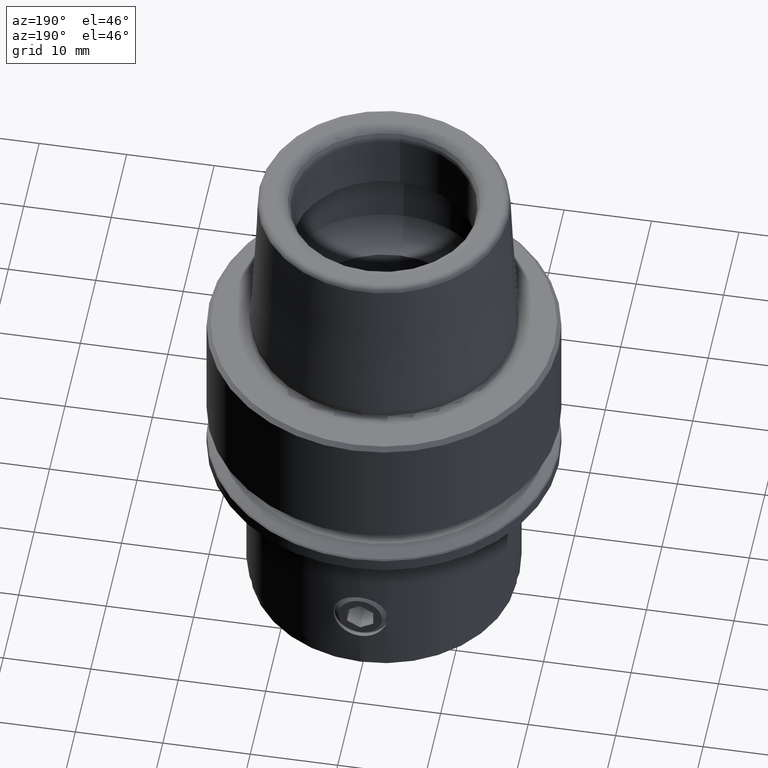
[diagram: clean part render]
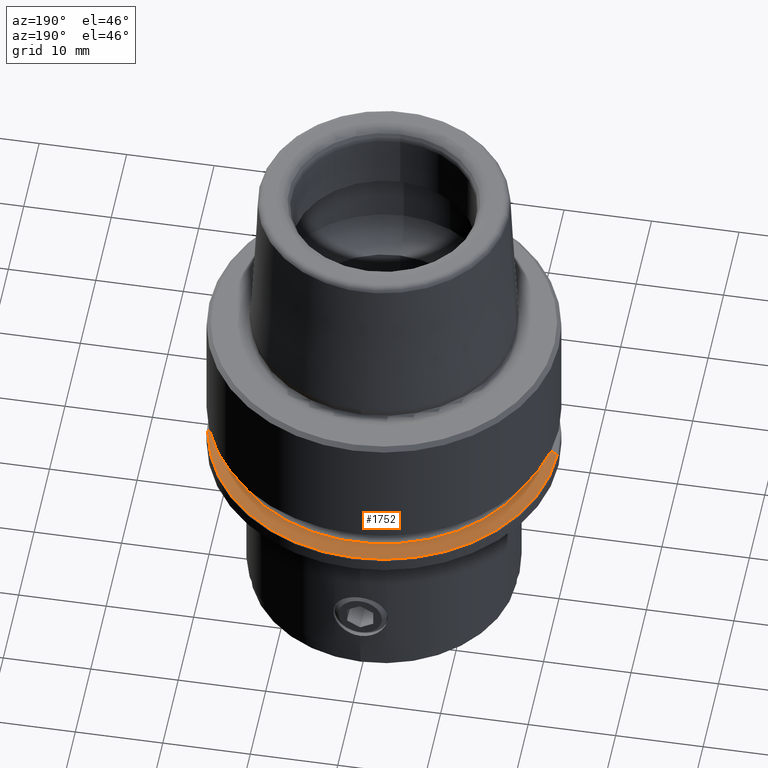
[diagram: same view with one face highlighted and labeled with its STEP entity id]
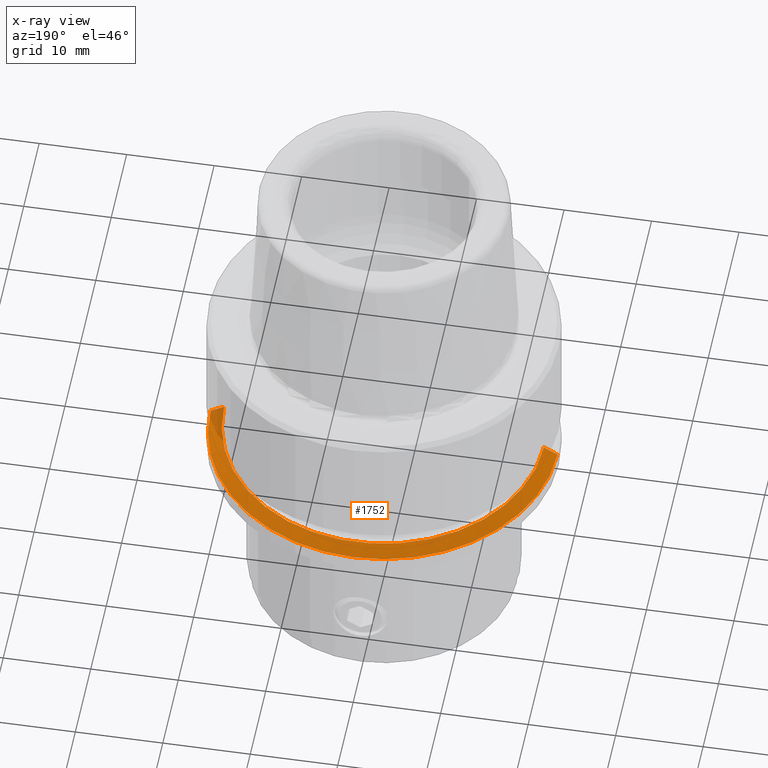
[diagram: x-ray of the same camera — body ghosted, the highlighted face saturated]
A machine part, auxiliary view. The second image highlights one B-rep face of the part: STEP entity #1752.
The next image is the same camera in x-ray: the body ghosted, the highlighted face saturated — about 4% of this face is hidden behind the body in this view.
In plain terms, the highlighted conical surface has half-angle 60 deg.
Its self-contained STEP definition (entity closure, byte-faithful):
#762=VERTEX_POINT('NONE',#2161);
#812=VERTEX_POINT('NONE',#2215);
#946=EDGE_CURVE('NONE',#762,#812,#2362,.T.);
#986=EDGE_CURVE('NONE',#1470,#1232,#2405,.T.);
#1160=EDGE_CURVE('NONE',#812,#1620,#2612,.T.);
#1232=VERTEX_POINT('NONE',#2692);
#1470=VERTEX_POINT('NONE',#2955);
#1620=VERTEX_POINT('NONE',#3121);
#1752=ADVANCED_FACE('NONE',(#3271),#3272,.T.);
#1792=EDGE_CURVE('NONE',#1232,#1620,#3312,.T.);
#1992=EDGE_CURVE('NONE',#762,#1470,#3533,.T.);
#2161=CARTESIAN_POINT('',(18.2720027128527,0.0,-17.0375));
#2215=CARTESIAN_POINT('',(-18.2720027128527,-2.33276862147015E-015,-17.0375));
#2362=CIRCLE('',#4024,18.2720027128527);
#2405=CIRCLE('',#4082,19.825);
#2612=LINE('',#4372,#4373);
#2692=CARTESIAN_POINT('',(-2.43704713030323E-015,19.825,-17.9341234017853));
#2955=CARTESIAN_POINT('',(19.825,0.0,-17.9341234017853));
#3121=CARTESIAN_POINT('',(-19.825,-2.42786227930963E-015,-17.9341234017853));
#3271=FACE_OUTER_BOUND('',#5455,.T.);
#3272=CONICAL_SURFACE('',#5456,17.8,1.0471975511966);
#3312=CIRCLE('',#5512,19.825);
#3533=LINE('',#5831,#5832);
#4024=AXIS2_PLACEMENT_3D('',#6259,#6260,#6261);
#4082=AXIS2_PLACEMENT_3D('',#6308,#6309,#6310);
#4372=CARTESIAN_POINT('',(-17.8,-2.17987130248229E-015,-16.7649891066763));
#4373=VECTOR('',#6650,1000.0);
#5455=EDGE_LOOP('',(#7485,#7486,#7487,#7488,#7489));
#5456=AXIS2_PLACEMENT_3D('',#7490,#7491,#7492);
#5512=AXIS2_PLACEMENT_3D('',#7518,#7519,#7520);
#5831=CARTESIAN_POINT('',(17.8,0.0,-16.7649891066763));
#5832=VECTOR('',#7790,1000.0);
#6259=CARTESIAN_POINT('',(0.0,0.0,-17.0375));
#6260=DIRECTION('',(0.0,0.0,1.0));
#6261=DIRECTION('',(-1.0,0.0,0.0));
#6308=CARTESIAN_POINT('',(0.0,0.0,-17.9341234017853));
#6309=DIRECTION('',(0.0,0.0,1.0));
#6310=DIRECTION('',(0.0,1.0,-0.0));
#6650=DIRECTION('',(-0.866025403784438,-1.06057523872491E-016,-0.5));
#7485=ORIENTED_EDGE('',*,*,#1160,.F.);
#7486=ORIENTED_EDGE('',*,*,#946,.F.);
#7487=ORIENTED_EDGE('',*,*,#1992,.T.);
#7488=ORIENTED_EDGE('',*,*,#986,.T.);
#7489=ORIENTED_EDGE('',*,*,#1792,.T.);
#7490=CARTESIAN_POINT('',(0.0,0.0,-16.7649891066763));
#7491=DIRECTION('',(-0.0,-0.0,-1.0));
#7492=DIRECTION('',(1.0,0.0,0.0));
#7518=CARTESIAN_POINT('',(0.0,0.0,-17.9341234017853));
#7519=DIRECTION('',(0.0,0.0,1.0));
#7520=DIRECTION('',(0.0,1.0,-0.0));
#7790=DIRECTION('',(0.866025403784438,0.0,-0.5));